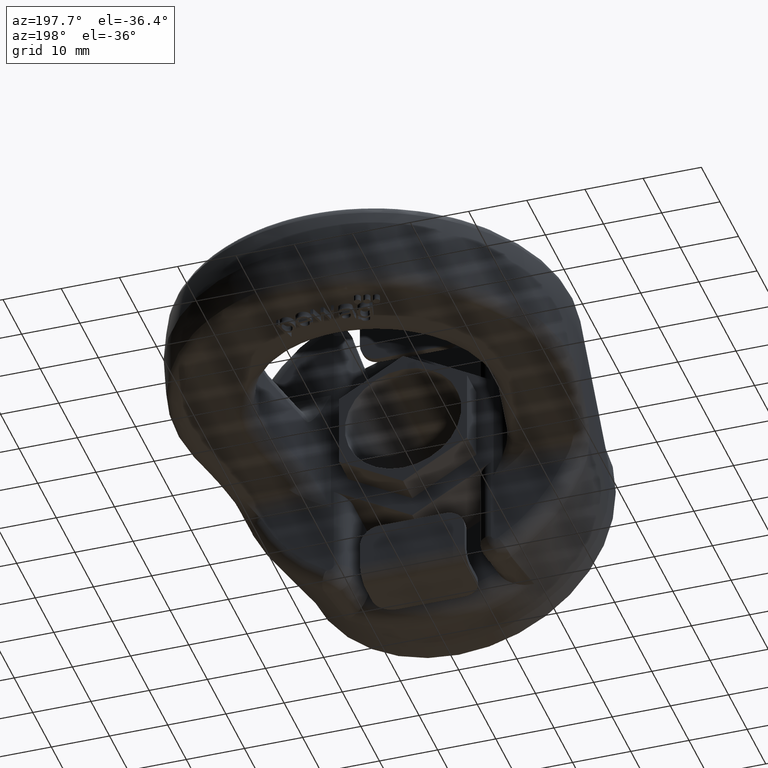
[diagram: clean part render]
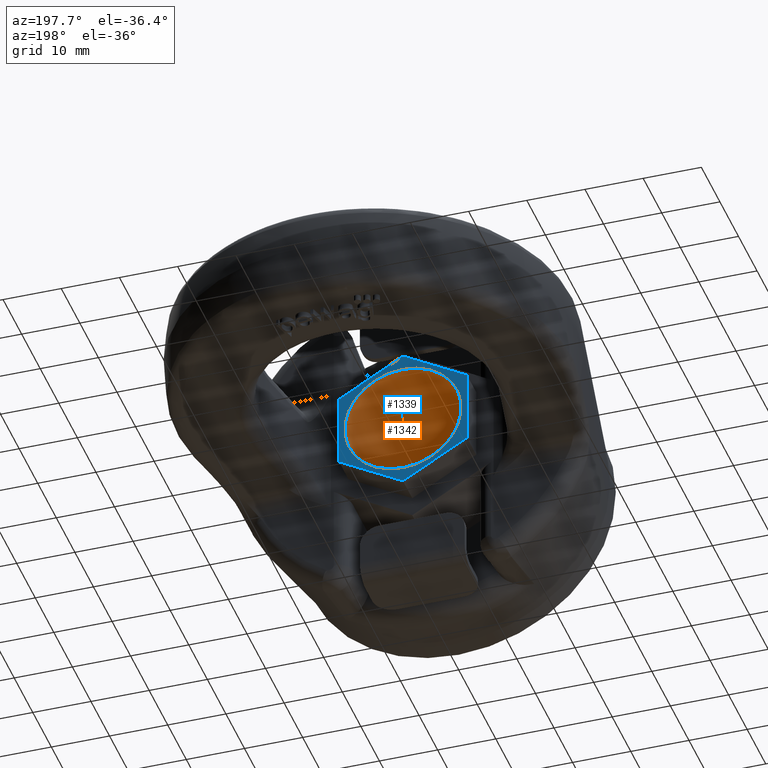
[diagram: same view with the hole feature highlighted: cylindrical wall and planar end face, labeled with their STEP entity ids]
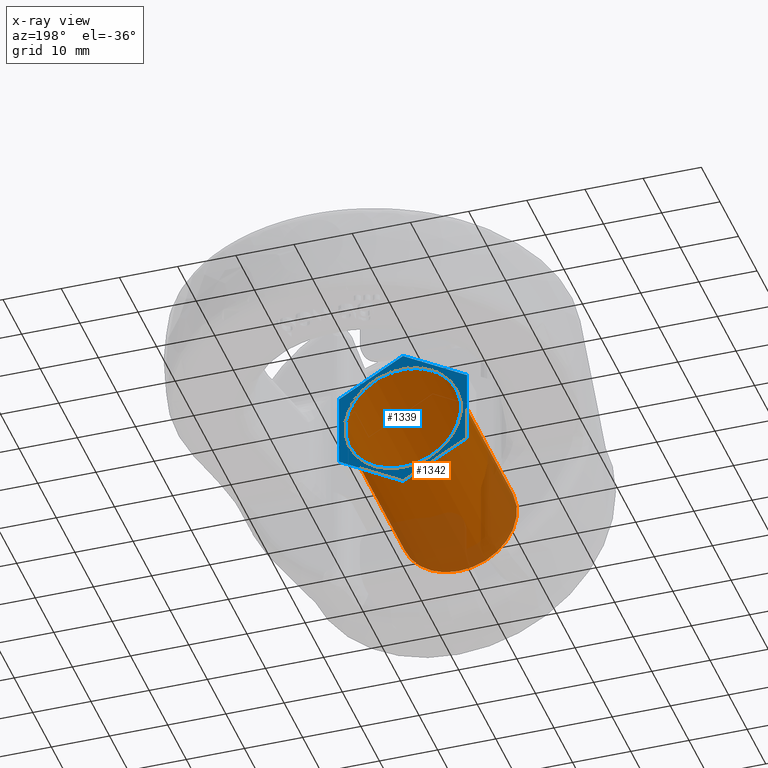
[diagram: x-ray of the same camera — body ghosted, the hole faces saturated]
A machine part, auxiliary view. The highlighted faces form one hole feature of diameter 20 mm: the cylindrical wall (entity #1342, orange) and its adjacent planar end face (entity #1339, blue) — they share a circular edge in the B-rep.
The next image is the same camera in x-ray (body ghosted, the hole faces saturated) — the bore reads through the body.
Wall:
#1070=CYLINDRICAL_SURFACE('',#5152,10.);
#1342=ADVANCED_FACE('',(#1789,#1790),#1070,.F.);
#1699=CIRCLE('',#5138,10.);
#1701=CIRCLE('',#5146,10.);
#1789=FACE_BOUND('',#1860,.T.);
#1790=FACE_BOUND('',#1861,.T.);
#1860=EDGE_LOOP('',(#2874));
#1861=EDGE_LOOP('',(#2875));
#2874=ORIENTED_EDGE('',*,*,#4398,.F.);
#2875=ORIENTED_EDGE('',*,*,#4387,.F.);
#3997=VERTEX_POINT('',#6860);
#4004=VERTEX_POINT('',#6884);
#4387=EDGE_CURVE('',#3997,#3997,#1699,.T.);
#4398=EDGE_CURVE('',#4004,#4004,#1701,.T.);
#5138=AXIS2_PLACEMENT_3D('',#6859,#5514,#5515);
#5146=AXIS2_PLACEMENT_3D('',#6883,#5539,#5540);
#5152=AXIS2_PLACEMENT_3D('',#6894,#5554,#5555);
#5514=DIRECTION('',(0.,1.,0.));
#5515=DIRECTION('',(0.,0.,1.));
#5539=DIRECTION('',(0.,-1.,0.));
#5540=DIRECTION('',(0.,0.,-1.));
#5554=DIRECTION('',(0.,-1.,0.));
#5555=DIRECTION('',(0.,0.,-1.));
#6859=CARTESIAN_POINT('',(0.,0.,0.));
#6860=CARTESIAN_POINT('',(0.,0.,10.));
#6883=CARTESIAN_POINT('',(0.,30.,0.));
#6884=CARTESIAN_POINT('',(0.,30.,-10.));
#6894=CARTESIAN_POINT('',(0.,30.,0.));
End face:
#1339=ADVANCED_FACE('',(#1787,#1788),#1575,.T.);
#1575=PLANE('',#5147);
#1701=CIRCLE('',#5146,10.);
#1787=FACE_BOUND('',#1856,.T.);
#1788=FACE_BOUND('',#1857,.T.);
#1856=EDGE_LOOP('',(#2857));
#1857=EDGE_LOOP('',(#2858,#2859,#2860,#2861,#2862,#2863));
#2168=LINE('',#6867,#2438);
#2170=LINE('',#6871,#2440);
#2174=LINE('',#6879,#2444);
#2175=LINE('',#6881,#2445);
#2176=LINE('',#6885,#2446);
#2177=LINE('',#6887,#2447);
#2438=VECTOR('',#5523,1.);
#2440=VECTOR('',#5527,1.);
#2444=VECTOR('',#5533,1.);
#2445=VECTOR('',#5536,1.);
#2446=VECTOR('',#5541,1.);
#2447=VECTOR('',#5542,1.);
#2857=ORIENTED_EDGE('',*,*,#4398,.T.);
#2858=ORIENTED_EDGE('',*,*,#4399,.T.);
#2859=ORIENTED_EDGE('',*,*,#4392,.T.);
#2860=ORIENTED_EDGE('',*,*,#4396,.T.);
#2861=ORIENTED_EDGE('',*,*,#4397,.T.);
#2862=ORIENTED_EDGE('',*,*,#4390,.T.);
#2863=ORIENTED_EDGE('',*,*,#4400,.T.);
#3999=VERTEX_POINT('',#6866);
#4000=VERTEX_POINT('',#6868);
#4001=VERTEX_POINT('',#6872);
#4002=VERTEX_POINT('',#6873);
#4003=VERTEX_POINT('',#6878);
#4004=VERTEX_POINT('',#6884);
#4005=VERTEX_POINT('',#6886);
#4390=EDGE_CURVE('',#4000,#3999,#2168,.T.);
#4392=EDGE_CURVE('',#4001,#4002,#2170,.T.);
#4396=EDGE_CURVE('',#4002,#4003,#2174,.T.);
#4397=EDGE_CURVE('',#4003,#4000,#2175,.T.);
#4398=EDGE_CURVE('',#4004,#4004,#1701,.T.);
#4399=EDGE_CURVE('',#4005,#4001,#2176,.T.);
#4400=EDGE_CURVE('',#3999,#4005,#2177,.T.);
#5146=AXIS2_PLACEMENT_3D('',#6883,#5539,#5540);
#5147=AXIS2_PLACEMENT_3D('',#6888,#5543,#5544);
#5523=DIRECTION('',(0.,0.,-1.));
#5527=DIRECTION('',(0.,0.,1.));
#5533=DIRECTION('',(0.866025403784439,0.,0.499999999999999));
#5536=DIRECTION('',(0.866025403784439,0.,-0.499999999999999));
#5539=DIRECTION('',(0.,-1.,0.));
#5540=DIRECTION('',(0.,0.,-1.));
#5541=DIRECTION('',(-0.86602540378444,0.,0.499999999999997));
#5542=DIRECTION('',(-0.866025403784438,0.,-0.500000000000001));
#5543=DIRECTION('',(0.,1.,0.));
#5544=DIRECTION('',(0.,0.,1.));
#6866=CARTESIAN_POINT('',(11.,30.,-6.35085296108585));
#6867=CARTESIAN_POINT('',(11.,30.,6.35085296108588));
#6868=CARTESIAN_POINT('',(11.,30.,6.35085296108588));
#6871=CARTESIAN_POINT('',(-11.,30.,-6.35085296108588));
#6872=CARTESIAN_POINT('',(-11.,30.,-6.3508529610859));
#6873=CARTESIAN_POINT('',(-11.,30.,6.35085296108588));
#6878=CARTESIAN_POINT('',(-1.73472347597681E-15,30.,12.7017059221717));
#6879=CARTESIAN_POINT('',(-11.,30.,6.35085296108588));
#6881=CARTESIAN_POINT('',(0.,30.,12.7017059221717));
#6883=CARTESIAN_POINT('',(0.,30.,0.));
#6884=CARTESIAN_POINT('',(0.,30.,-10.));
#6885=CARTESIAN_POINT('',(2.97589630837554E-14,30.,-12.7017059221717));
#6886=CARTESIAN_POINT('',(3.14936865597322E-14,30.,-12.7017059221717));
#6887=CARTESIAN_POINT('',(11.,30.,-6.35085296108585));
#6888=CARTESIAN_POINT('',(0.,30.,0.));